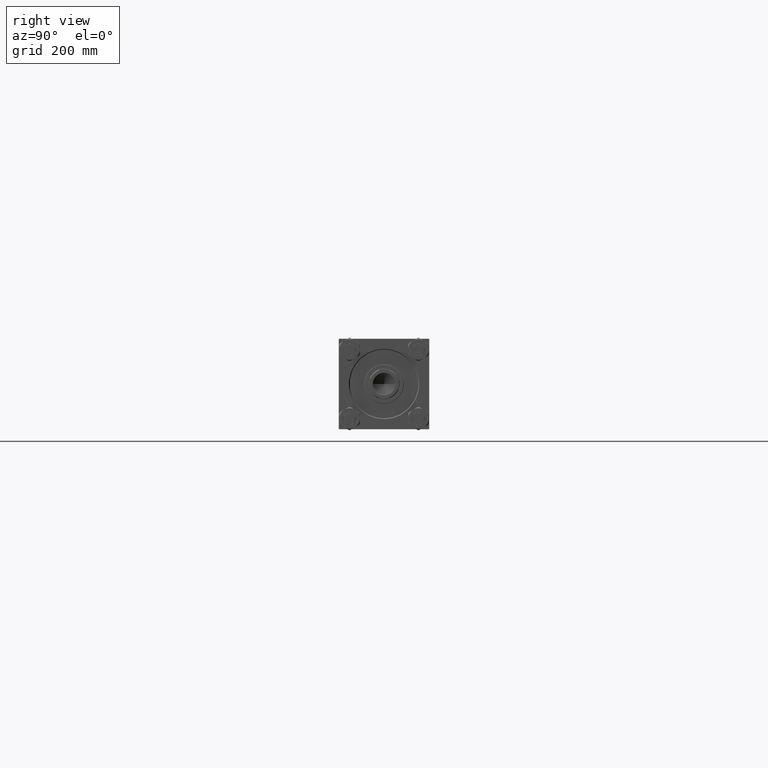
[diagram: clean part render]
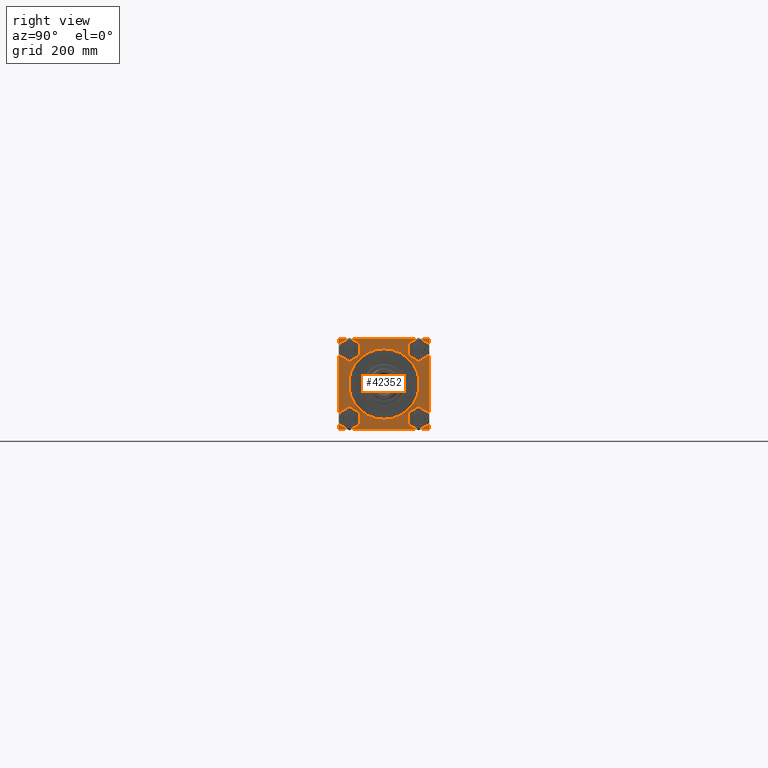
[diagram: same view with one face highlighted and labeled with its STEP entity id]
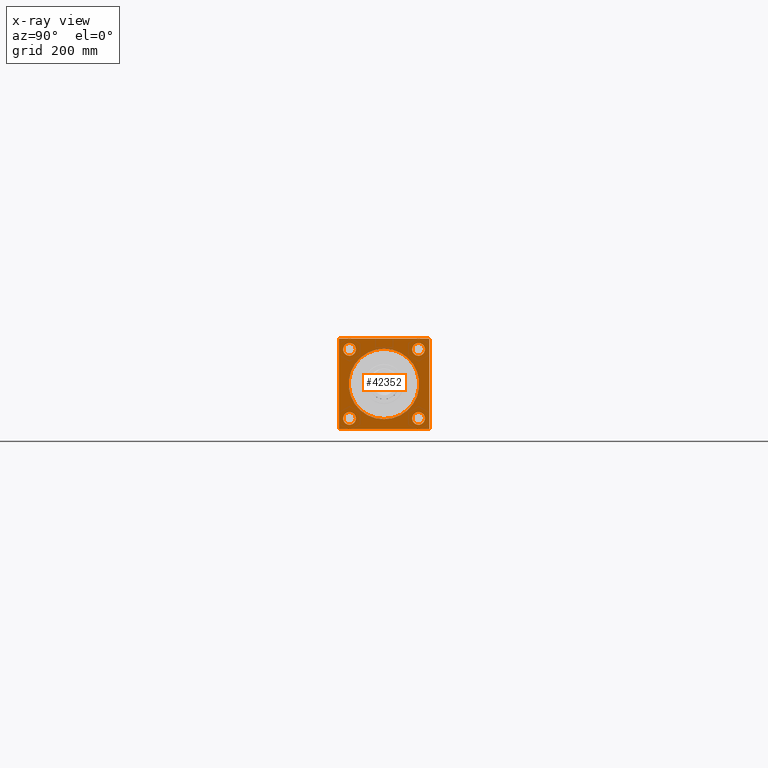
[diagram: x-ray of the same camera — body ghosted, the highlighted face saturated]
A machine part, right view. The second image highlights one B-rep face of the part: STEP entity #42352.
The next image is the same camera in x-ray: the body ghosted, the highlighted face saturated — about 0% of this face is hidden behind the body in this view.
In plain terms, the highlighted planar face has unit normal (-1, 0, 0).
Its self-contained STEP definition (entity closure, byte-faithful):
#81 = AXIS2_PLACEMENT_3D ( 'NONE', #21907, #45314, #41503 ) ;
#717 = DIRECTION ( 'NONE',  ( -1.000000000000000000, -0.000000000000000000, 0.000000000000000000 ) ) ;
#982 = DIRECTION ( 'NONE',  ( 0.000000000000000000, -1.000000000000000000, -1.682156097916904081E-16 ) ) ;
#1290 = ORIENTED_EDGE ( 'NONE', *, *, #7650, .T. ) ;
#1440 = EDGE_LOOP ( 'NONE', ( #40485, #12261 ) ) ;
#1456 = EDGE_CURVE ( 'NONE', #13305, #10839, #25263, .T. ) ;
#1465 = CARTESIAN_POINT ( 'NONE',  ( 1197.000000000000000, -62.94999999999998153, 62.95000000000001705 ) ) ;
#1657 = CARTESIAN_POINT ( 'NONE',  ( 1197.000000000000000, -62.94999999999998153, 51.44999999999961915 ) ) ;
#1765 = CARTESIAN_POINT ( 'NONE',  ( 1197.000000000000000, 82.50000000000001421, -82.00000000000008527 ) ) ;
#1800 = ORIENTED_EDGE ( 'NONE', *, *, #50025, .T. ) ;
#2029 = EDGE_CURVE ( 'NONE', #13724, #37121, #36918, .T. ) ;
#2144 = EDGE_CURVE ( 'NONE', #32290, #41488, #19049, .T. ) ;
#2720 = CARTESIAN_POINT ( 'NONE',  ( 1197.000000000000000, -62.94999999999998153, -74.45000000000008811 ) ) ;
#3333 = DIRECTION ( 'NONE',  ( 0.000000000000000000, -1.682156097916903834E-16, -1.000000000000000000 ) ) ;
#3631 = AXIS2_PLACEMENT_3D ( 'NONE', #15255, #27703, #22886 ) ;
#3726 = DIRECTION ( 'NONE',  ( 0.000000000000000000, -0.7071067811865474617, 0.7071067811865474617 ) ) ;
#3744 = ORIENTED_EDGE ( 'NONE', *, *, #2144, .T. ) ;
#3775 = DIRECTION ( 'NONE',  ( 0.000000000000000000, 0.000000000000000000, -1.000000000000000000 ) ) ;
#4302 = EDGE_LOOP ( 'NONE', ( #3744, #41240 ) ) ;
#4455 = EDGE_CURVE ( 'NONE', #18242, #48604, #38627, .T. ) ;
#4785 = CARTESIAN_POINT ( 'NONE',  ( 1197.000000000000000, 82.00000000000007105, 82.50000000000000000 ) ) ;
#4849 = FACE_BOUND ( 'NONE', #11861, .T. ) ;
#4894 = CARTESIAN_POINT ( 'NONE',  ( 1197.000000000000000, 0.000000000000000000, 0.000000000000000000 ) ) ;
#5057 = CARTESIAN_POINT ( 'NONE',  ( 1197.000000000000000, 0.000000000000000000, -64.25000000000002842 ) ) ;
#5106 = DIRECTION ( 'NONE',  ( 0.000000000000000000, 0.000000000000000000, 1.000000000000000000 ) ) ;
#5294 = CARTESIAN_POINT ( 'NONE',  ( 1197.000000000000000, -62.94999999999998153, -51.44999999999995310 ) ) ;
#5685 = VECTOR ( 'NONE', #3726, 1000.000000000000114 ) ;
#5735 = AXIS2_PLACEMENT_3D ( 'NONE', #1465, #10080, #24866 ) ;
#6074 = DIRECTION ( 'NONE',  ( -1.000000000000000000, -0.000000000000000000, 0.000000000000000000 ) ) ;
#6315 = CARTESIAN_POINT ( 'NONE',  ( 1197.000000000000000, -62.94999999999998153, -62.95000000000001705 ) ) ;
#7357 = ORIENTED_EDGE ( 'NONE', *, *, #1456, .T. ) ;
#7650 = EDGE_CURVE ( 'NONE', #24504, #30198, #37102, .T. ) ;
#8183 = CIRCLE ( 'NONE', #39862, 11.50000000000006573 ) ;
#8409 = FACE_BOUND ( 'NONE', #12649, .T. ) ;
#8907 = CARTESIAN_POINT ( 'NONE',  ( 1197.000000000000000, -62.94999999999998153, -62.95000000000001705 ) ) ;
#9964 = ORIENTED_EDGE ( 'NONE', *, *, #15118, .T. ) ;
#10080 = DIRECTION ( 'NONE',  ( -1.000000000000000000, -0.000000000000000000, 0.000000000000000000 ) ) ;
#10111 = CARTESIAN_POINT ( 'NONE',  ( 1197.000000000000000, 82.50000000000001421, -82.50000000000002842 ) ) ;
#10375 = ORIENTED_EDGE ( 'NONE', *, *, #40844, .T. ) ;
#10614 = EDGE_CURVE ( 'NONE', #30198, #24504, #47846, .T. ) ;
#10839 = VERTEX_POINT ( 'NONE', #32963 ) ;
#11341 = LINE ( 'NONE', #38578, #5685 ) ;
#11861 = EDGE_LOOP ( 'NONE', ( #20757, #9964 ) ) ;
#12261 = ORIENTED_EDGE ( 'NONE', *, *, #14494, .T. ) ;
#12310 = CARTESIAN_POINT ( 'NONE',  ( 1197.000000000000000, 82.00000000000007105, -82.50000000000002842 ) ) ;
#12479 = PLANE ( 'NONE',  #14527 ) ;
#12575 = CARTESIAN_POINT ( 'NONE',  ( 1197.000000000000000, -82.00000000000004263, -82.50000000000002842 ) ) ;
#12649 = EDGE_LOOP ( 'NONE', ( #32731, #36255 ) ) ;
#12730 = CARTESIAN_POINT ( 'NONE',  ( 1197.000000000000000, 0.000000000000000000, 0.000000000000000000 ) ) ;
#12936 = CARTESIAN_POINT ( 'NONE',  ( 1197.000000000000000, 62.95000000000000284, -62.95000000000000284 ) ) ;
#13305 = VERTEX_POINT ( 'NONE', #38179 ) ;
#13724 = VERTEX_POINT ( 'NONE', #20272 ) ;
#14494 = EDGE_CURVE ( 'NONE', #45859, #36564, #21174, .T. ) ;
#14527 = AXIS2_PLACEMENT_3D ( 'NONE', #12730, #28247, #43757 ) ;
#14975 = AXIS2_PLACEMENT_3D ( 'NONE', #33097, #48594, #29268 ) ;
#15118 = EDGE_CURVE ( 'NONE', #37121, #13724, #34215, .T. ) ;
#15255 = CARTESIAN_POINT ( 'NONE',  ( 1197.000000000000000, 62.95000000000000284, -62.95000000000000284 ) ) ;
#16542 = FACE_BOUND ( 'NONE', #1440, .T. ) ;
#16723 = CARTESIAN_POINT ( 'NONE',  ( 1197.000000000000000, 7.868355684521749046E-15, 64.25000000000002842 ) ) ;
#16816 = VERTEX_POINT ( 'NONE', #5294 ) ;
#18086 = ORIENTED_EDGE ( 'NONE', *, *, #38341, .T. ) ;
#18242 = VERTEX_POINT ( 'NONE', #27647 ) ;
#19049 = CIRCLE ( 'NONE', #3631, 11.50000000000006573 ) ;
#19068 = ORIENTED_EDGE ( 'NONE', *, *, #28439, .T. ) ;
#19434 = CARTESIAN_POINT ( 'NONE',  ( 1197.000000000000000, -62.94999999999998153, 74.45000000000041496 ) ) ;
#19747 = CIRCLE ( 'NONE', #41672, 11.50000000000039790 ) ;
#20017 = AXIS2_PLACEMENT_3D ( 'NONE', #4894, #23979, #28035 ) ;
#20051 = CARTESIAN_POINT ( 'NONE',  ( 1197.000000000000000, -62.94999999999998153, 62.95000000000001705 ) ) ;
#20213 = AXIS2_PLACEMENT_3D ( 'NONE', #37328, #45706, #33519 ) ;
#20272 = CARTESIAN_POINT ( 'NONE',  ( 1197.000000000000000, 62.95000000000000284, 51.44999999999993889 ) ) ;
#20499 = VECTOR ( 'NONE', #3333, 1000.000000000000000 ) ;
#20575 = DIRECTION ( 'NONE',  ( -1.000000000000000000, -0.000000000000000000, 0.000000000000000000 ) ) ;
#20757 = ORIENTED_EDGE ( 'NONE', *, *, #2029, .T. ) ;
#20762 = VECTOR ( 'NONE', #35966, 1000.000000000000114 ) ;
#20830 = DIRECTION ( 'NONE',  ( 0.000000000000000000, 0.000000000000000000, 1.000000000000000000 ) ) ;
#21054 = CARTESIAN_POINT ( 'NONE',  ( 1197.000000000000000, 82.50000000000001421, -82.00000000000008527 ) ) ;
#21174 = CIRCLE ( 'NONE', #5735, 11.50000000000039790 ) ;
#21907 = CARTESIAN_POINT ( 'NONE',  ( 1197.000000000000000, 62.95000000000000284, 62.95000000000000284 ) ) ;
#22324 = DIRECTION ( 'NONE',  ( 0.000000000000000000, 0.000000000000000000, 1.000000000000000000 ) ) ;
#22886 = DIRECTION ( 'NONE',  ( 0.000000000000000000, 0.000000000000000000, 1.000000000000000000 ) ) ;
#23585 = CIRCLE ( 'NONE', #32532, 11.50000000000006573 ) ;
#23721 = EDGE_CURVE ( 'NONE', #36564, #45859, #19747, .T. ) ;
#23808 = VERTEX_POINT ( 'NONE', #2720 ) ;
#23979 = DIRECTION ( 'NONE',  ( -1.000000000000000000, -0.000000000000000000, 0.000000000000000000 ) ) ;
#24255 = CARTESIAN_POINT ( 'NONE',  ( 1197.000000000000000, -82.49999999999997158, 81.99999999999981526 ) ) ;
#24368 = VERTEX_POINT ( 'NONE', #48835 ) ;
#24504 = VERTEX_POINT ( 'NONE', #5057 ) ;
#24633 = DIRECTION ( 'NONE',  ( 0.000000000000000000, 0.000000000000000000, 1.000000000000000000 ) ) ;
#24866 = DIRECTION ( 'NONE',  ( 0.000000000000000000, 0.000000000000000000, 1.000000000000000000 ) ) ;
#24909 = LINE ( 'NONE', #1765, #28011 ) ;
#25263 = LINE ( 'NONE', #24255, #20762 ) ;
#25718 = EDGE_LOOP ( 'NONE', ( #1290, #34606 ) ) ;
#26385 = DIRECTION ( 'NONE',  ( 0.000000000000000000, -1.000000000000000000, 0.000000000000000000 ) ) ;
#26623 = EDGE_CURVE ( 'NONE', #39020, #24368, #45214, .T. ) ;
#26729 = LINE ( 'NONE', #27235, #20499 ) ;
#27235 = CARTESIAN_POINT ( 'NONE',  ( 1197.000000000000000, -82.49999999999997158, 82.49999999999997158 ) ) ;
#27495 = DIRECTION ( 'NONE',  ( -1.000000000000000000, -0.000000000000000000, 0.000000000000000000 ) ) ;
#27647 = CARTESIAN_POINT ( 'NONE',  ( 1197.000000000000000, 82.50000000000001421, 82.00000000000005684 ) ) ;
#27703 = DIRECTION ( 'NONE',  ( -1.000000000000000000, -0.000000000000000000, 0.000000000000000000 ) ) ;
#28011 = VECTOR ( 'NONE', #37110, 1000.000000000000114 ) ;
#28035 = DIRECTION ( 'NONE',  ( 0.000000000000000000, 0.000000000000000000, 1.000000000000000000 ) ) ;
#28197 = LINE ( 'NONE', #36350, #47001 ) ;
#28247 = DIRECTION ( 'NONE',  ( -1.000000000000000000, -0.000000000000000000, 0.000000000000000000 ) ) ;
#28439 = EDGE_CURVE ( 'NONE', #39020, #48604, #24909, .T. ) ;
#28502 = FACE_BOUND ( 'NONE', #25718, .T. ) ;
#29268 = DIRECTION ( 'NONE',  ( 0.000000000000000000, 0.000000000000000000, 1.000000000000000000 ) ) ;
#29758 = ORIENTED_EDGE ( 'NONE', *, *, #4455, .F. ) ;
#30198 = VERTEX_POINT ( 'NONE', #16723 ) ;
#31266 = ORIENTED_EDGE ( 'NONE', *, *, #26623, .F. ) ;
#31726 = CARTESIAN_POINT ( 'NONE',  ( 1197.000000000000000, 82.50000000000001421, 82.50000000000000000 ) ) ;
#32290 = VERTEX_POINT ( 'NONE', #48405 ) ;
#32327 = FACE_OUTER_BOUND ( 'NONE', #46904, .T. ) ;
#32532 = AXIS2_PLACEMENT_3D ( 'NONE', #8907, #27495, #5106 ) ;
#32731 = ORIENTED_EDGE ( 'NONE', *, *, #46719, .T. ) ;
#32963 = CARTESIAN_POINT ( 'NONE',  ( 1197.000000000000000, -82.49999999999997158, 81.99999999999981526 ) ) ;
#33097 = CARTESIAN_POINT ( 'NONE',  ( 1197.000000000000000, 62.95000000000000284, 62.95000000000000284 ) ) ;
#33519 = DIRECTION ( 'NONE',  ( 0.000000000000000000, 0.000000000000000000, 1.000000000000000000 ) ) ;
#33792 = EDGE_CURVE ( 'NONE', #41488, #32290, #48441, .T. ) ;
#34215 = CIRCLE ( 'NONE', #81, 11.50000000000006573 ) ;
#34264 = CARTESIAN_POINT ( 'NONE',  ( 1197.000000000000000, 62.95000000000000284, 74.45000000000007390 ) ) ;
#34571 = VECTOR ( 'NONE', #3775, 1000.000000000000000 ) ;
#34606 = ORIENTED_EDGE ( 'NONE', *, *, #10614, .T. ) ;
#35632 = FACE_BOUND ( 'NONE', #4302, .T. ) ;
#35966 = DIRECTION ( 'NONE',  ( -0.000000000000000000, -0.7071067811865573427, -0.7071067811865376918 ) ) ;
#36245 = LINE ( 'NONE', #12575, #47871 ) ;
#36255 = ORIENTED_EDGE ( 'NONE', *, *, #42396, .T. ) ;
#36350 = CARTESIAN_POINT ( 'NONE',  ( 1197.000000000000000, 82.50000000000001421, 82.50000000000000000 ) ) ;
#36564 = VERTEX_POINT ( 'NONE', #1657 ) ;
#36918 = CIRCLE ( 'NONE', #14975, 11.50000000000006573 ) ;
#37102 = CIRCLE ( 'NONE', #20017, 64.25000000000002842 ) ;
#37110 = DIRECTION ( 'NONE',  ( -0.000000000000000000, 0.7071067811865474617, 0.7071067811865474617 ) ) ;
#37121 = VERTEX_POINT ( 'NONE', #34264 ) ;
#37328 = CARTESIAN_POINT ( 'NONE',  ( 1197.000000000000000, 0.000000000000000000, 0.000000000000000000 ) ) ;
#38148 = VERTEX_POINT ( 'NONE', #40223 ) ;
#38179 = CARTESIAN_POINT ( 'NONE',  ( 1197.000000000000000, -81.99999999999980105, 82.49999999999997158 ) ) ;
#38341 = EDGE_CURVE ( 'NONE', #42653, #13305, #28197, .T. ) ;
#38366 = DIRECTION ( 'NONE',  ( 0.000000000000000000, 0.7071067811865573427, -0.7071067811865376918 ) ) ;
#38578 = CARTESIAN_POINT ( 'NONE',  ( 1197.000000000000000, 82.00000000000007105, 82.50000000000000000 ) ) ;
#38627 = LINE ( 'NONE', #31726, #34571 ) ;
#39020 = VERTEX_POINT ( 'NONE', #12310 ) ;
#39862 = AXIS2_PLACEMENT_3D ( 'NONE', #6315, #6074, #22324 ) ;
#40223 = CARTESIAN_POINT ( 'NONE',  ( 1197.000000000000000, -82.50000000000000000, -82.00000000000008527 ) ) ;
#40485 = ORIENTED_EDGE ( 'NONE', *, *, #23721, .T. ) ;
#40844 = EDGE_CURVE ( 'NONE', #18242, #42653, #11341, .T. ) ;
#40955 = VECTOR ( 'NONE', #26385, 1000.000000000000000 ) ;
#41240 = ORIENTED_EDGE ( 'NONE', *, *, #33792, .T. ) ;
#41488 = VERTEX_POINT ( 'NONE', #43006 ) ;
#41503 = DIRECTION ( 'NONE',  ( 0.000000000000000000, 0.000000000000000000, 1.000000000000000000 ) ) ;
#41672 = AXIS2_PLACEMENT_3D ( 'NONE', #20051, #717, #24633 ) ;
#42352 = ADVANCED_FACE ( 'NONE', ( #8409, #35632, #4849, #16542, #28502, #32327 ), #12479, .F. ) ;
#42396 = EDGE_CURVE ( 'NONE', #16816, #23808, #23585, .T. ) ;
#42653 = VERTEX_POINT ( 'NONE', #4785 ) ;
#43006 = CARTESIAN_POINT ( 'NONE',  ( 1197.000000000000000, 62.95000000000000284, -51.44999999999993889 ) ) ;
#43301 = EDGE_CURVE ( 'NONE', #38148, #24368, #36245, .T. ) ;
#43757 = DIRECTION ( 'NONE',  ( 0.000000000000000000, 0.000000000000000000, 1.000000000000000000 ) ) ;
#45214 = LINE ( 'NONE', #10111, #40955 ) ;
#45314 = DIRECTION ( 'NONE',  ( -1.000000000000000000, -0.000000000000000000, 0.000000000000000000 ) ) ;
#45706 = DIRECTION ( 'NONE',  ( -1.000000000000000000, -0.000000000000000000, 0.000000000000000000 ) ) ;
#45859 = VERTEX_POINT ( 'NONE', #19434 ) ;
#46719 = EDGE_CURVE ( 'NONE', #23808, #16816, #8183, .T. ) ;
#46904 = EDGE_LOOP ( 'NONE', ( #1800, #47451, #31266, #19068, #29758, #10375, #18086, #7357 ) ) ;
#47001 = VECTOR ( 'NONE', #982, 1000.000000000000000 ) ;
#47451 = ORIENTED_EDGE ( 'NONE', *, *, #43301, .T. ) ;
#47846 = CIRCLE ( 'NONE', #20213, 64.25000000000002842 ) ;
#47871 = VECTOR ( 'NONE', #38366, 1000.000000000000114 ) ;
#48405 = CARTESIAN_POINT ( 'NONE',  ( 1197.000000000000000, 62.95000000000000284, -74.45000000000007390 ) ) ;
#48441 = CIRCLE ( 'NONE', #49216, 11.50000000000006573 ) ;
#48594 = DIRECTION ( 'NONE',  ( -1.000000000000000000, -0.000000000000000000, 0.000000000000000000 ) ) ;
#48604 = VERTEX_POINT ( 'NONE', #21054 ) ;
#48835 = CARTESIAN_POINT ( 'NONE',  ( 1197.000000000000000, -82.00000000000004263, -82.50000000000002842 ) ) ;
#49216 = AXIS2_PLACEMENT_3D ( 'NONE', #12936, #20575, #20830 ) ;
#50025 = EDGE_CURVE ( 'NONE', #10839, #38148, #26729, .T. ) ;